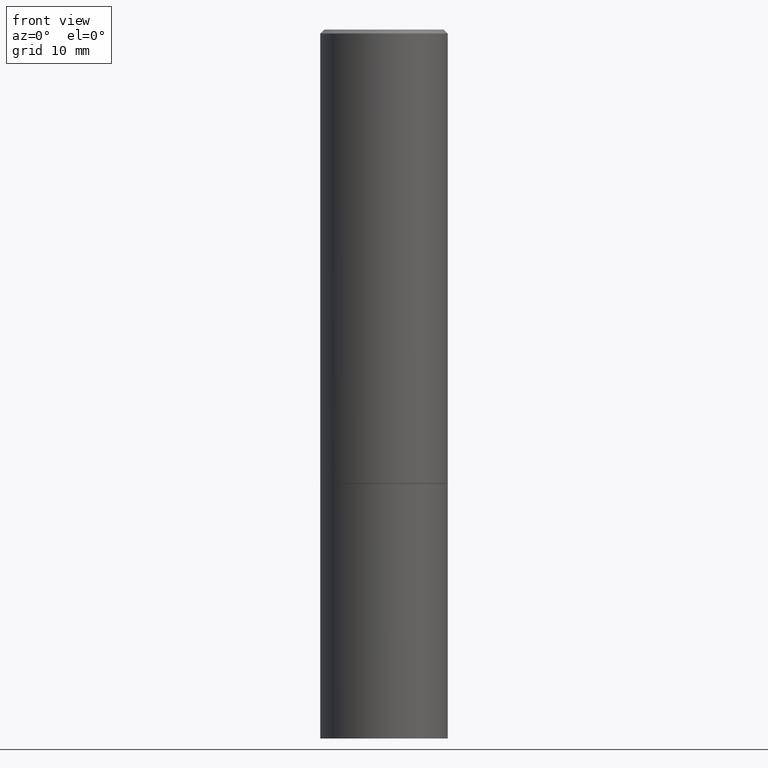
[diagram: clean part render]
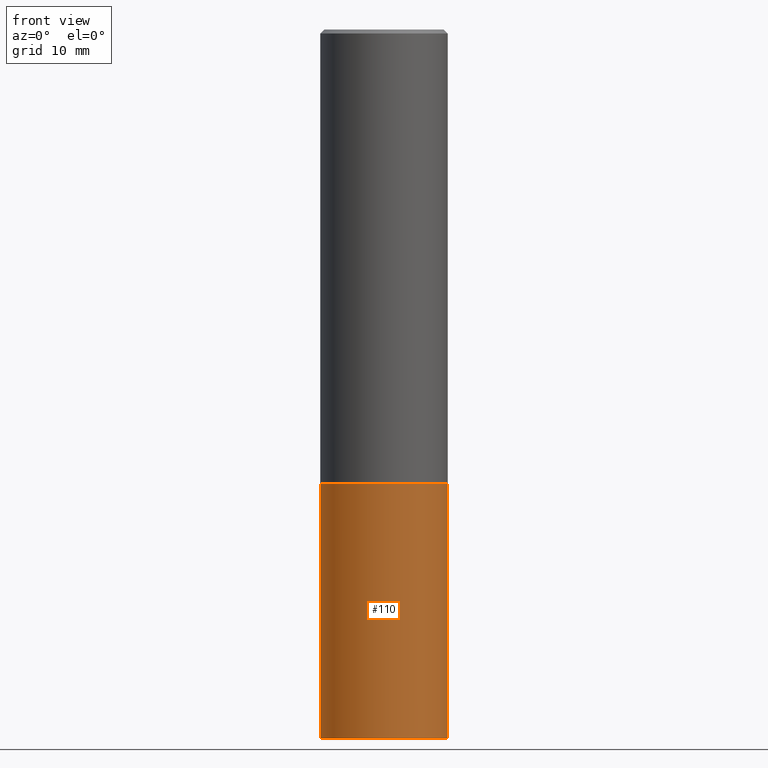
[diagram: same view with one face highlighted and labeled with its STEP entity id]
A machine part, front view. The second image highlights one B-rep face of the part: STEP entity #110.
In plain terms, the highlighted cylindrical surface (partial cylindrical patch) has radius 7.9997 mm, axis along (-0, 0, 1).
Its self-contained STEP definition (entity closure, byte-faithful):
#13 = DIRECTION ( 'NONE',  ( -2.445468806185136597E-29, 3.491481338843145583E-15, 1.000000000000000000 ) ) ;
#32 = ORIENTED_EDGE ( 'NONE', *, *, #230, .T. ) ;
#40 = CIRCLE ( 'NONE', #283, 0.3149500000000000077 ) ;
#43 = CARTESIAN_POINT ( 'NONE',  ( 5.487876547960064752E-29, -7.835233272497900762E-15, -2.244099999999999540 ) ) ;
#60 = ORIENTED_EDGE ( 'NONE', *, *, #127, .T. ) ;
#67 = EDGE_CURVE ( 'NONE', #86, #362, #120, .T. ) ;
#74 = DIRECTION ( 'NONE',  ( 1.000000000000000000, -6.982962677686266711E-15, 0.000000000000000000 ) ) ;
#86 = VERTEX_POINT ( 'NONE', #205 ) ;
#88 = CIRCLE ( 'NONE', #232, 0.3149500000000000077 ) ;
#90 = FACE_OUTER_BOUND ( 'NONE', #135, .T. ) ;
#93 = CARTESIAN_POINT ( 'NONE',  ( -0.3149500000000000077, 2.237854346276435590E-15, -1.549218606675782676E-29 ) ) ;
#100 = VECTOR ( 'NONE', #117, 39.37007874015748143 ) ;
#105 = ORIENTED_EDGE ( 'NONE', *, *, #217, .F. ) ;
#110 = ADVANCED_FACE ( 'NONE', ( #90 ), #151, .T. ) ;
#117 = DIRECTION ( 'NONE',  ( -2.445468806185136877E-29, 3.491481338843145188E-15, 1.000000000000000000 ) ) ;
#120 = LINE ( 'NONE', #93, #100 ) ;
#124 = AXIS2_PLACEMENT_3D ( 'NONE', #292, #13, #148 ) ;
#126 = DIRECTION ( 'NONE',  ( -2.445468806185136877E-29, 3.491481338843145188E-15, 1.000000000000000000 ) ) ;
#127 = EDGE_CURVE ( 'NONE', #86, #161, #40, .T. ) ;
#135 = EDGE_LOOP ( 'NONE', ( #223, #60, #32, #105 ) ) ;
#148 = DIRECTION ( 'NONE',  ( 1.000000000000000000, -6.982962677686266711E-15, 4.876176775795936353E-29 ) ) ;
#151 = CYLINDRICAL_SURFACE ( 'NONE', #124, 0.3149500000000000077 ) ;
#157 = CARTESIAN_POINT ( 'NONE',  ( 0.3149500000000000077, -1.003451736783519063E-14, -2.244099999999999540 ) ) ;
#159 = VECTOR ( 'NONE', #126, 39.37007874015748143 ) ;
#161 = VERTEX_POINT ( 'NONE', #346 ) ;
#184 = CARTESIAN_POINT ( 'NONE',  ( 0.3149500000000000077, -2.199284095337289871E-15, 1.535751875536930130E-29 ) ) ;
#205 = CARTESIAN_POINT ( 'NONE',  ( -0.3149500000000000077, -7.796663021558764114E-15, -3.503899999999999793 ) ) ;
#211 = LINE ( 'NONE', #184, #159 ) ;
#217 = EDGE_CURVE ( 'NONE', #362, #297, #88, .T. ) ;
#223 = ORIENTED_EDGE ( 'NONE', *, *, #67, .F. ) ;
#230 = EDGE_CURVE ( 'NONE', #161, #297, #211, .T. ) ;
#232 = AXIS2_PLACEMENT_3D ( 'NONE', #43, #233, #74 ) ;
#233 = DIRECTION ( 'NONE',  ( -2.445468806185136597E-29, 3.491481338843145583E-15, 1.000000000000000000 ) ) ;
#235 = DIRECTION ( 'NONE',  ( 1.000000000000000000, -6.982962677686263555E-15, 0.000000000000000000 ) ) ;
#283 = AXIS2_PLACEMENT_3D ( 'NONE', #342, #324, #235 ) ;
#292 = CARTESIAN_POINT ( 'NONE',  ( 0.000000000000000000, 0.000000000000000000, 0.000000000000000000 ) ) ;
#297 = VERTEX_POINT ( 'NONE', #157 ) ;
#324 = DIRECTION ( 'NONE',  ( -2.445468806185136597E-29, 3.491481338843145583E-15, 1.000000000000000000 ) ) ;
#331 = CARTESIAN_POINT ( 'NONE',  ( -0.3149500000000000077, -7.796663021558764114E-15, -2.244099999999999540 ) ) ;
#342 = CARTESIAN_POINT ( 'NONE',  ( 8.568678149992099474E-29, -1.223380146317249786E-14, -3.503899999999999793 ) ) ;
#346 = CARTESIAN_POINT ( 'NONE',  ( 0.3149500000000000077, -1.443308555850978615E-14, -3.503899999999999793 ) ) ;
#362 = VERTEX_POINT ( 'NONE', #331 ) ;